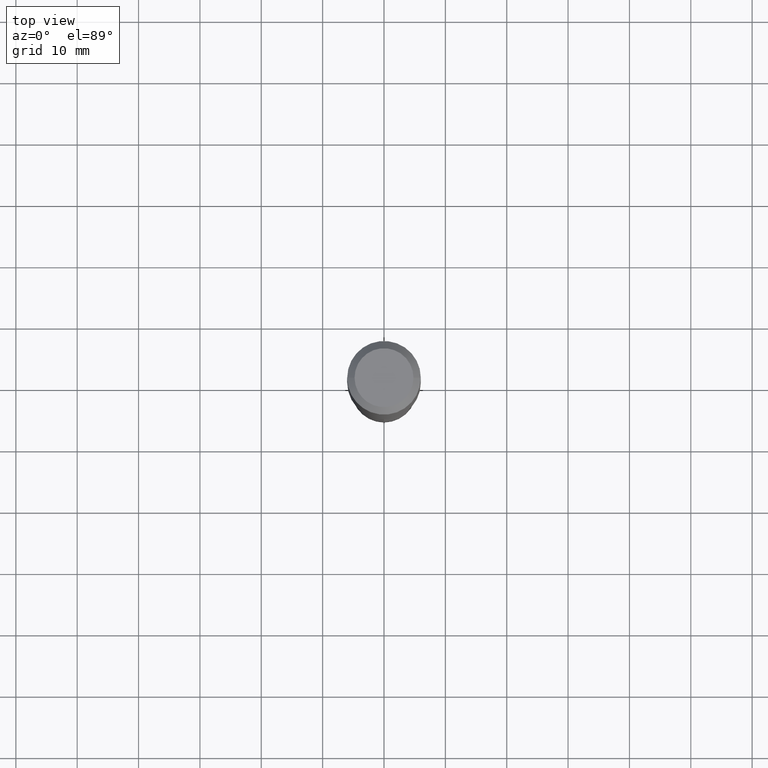
[diagram: clean part render]
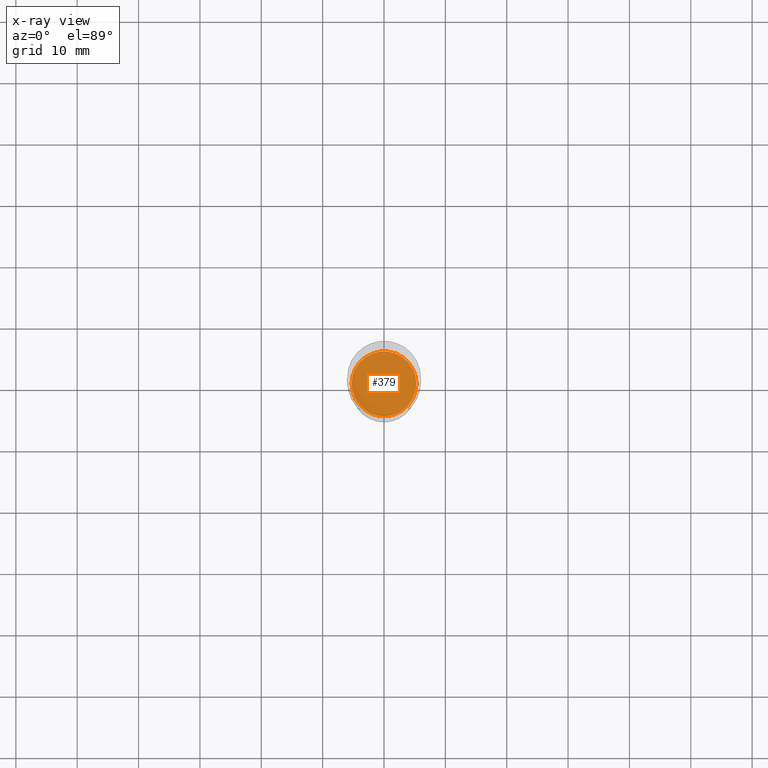
[diagram: x-ray — body ghosted, one internal face saturated and labeled with its STEP entity id]
A machine part, top view, then the same camera in x-ray: the body is ghosted and one INTERNAL B-rep face — a face not visible from any outside direction — is saturated and labeled: STEP entity #379.
In plain terms, the highlighted planar face has unit normal (-0, 0, 1).
Its self-contained STEP definition (entity closure, byte-faithful):
#15 = AXIS2_PLACEMENT_3D ( 'NONE', #451, #76, #109 ) ;
#54 = AXIS2_PLACEMENT_3D ( 'NONE', #332, #400, #473 ) ;
#62 = EDGE_LOOP ( 'NONE', ( #412, #247 ) ) ;
#70 = VERTEX_POINT ( 'NONE', #446 ) ;
#76 = DIRECTION ( 'NONE',  ( -2.445468806185136597E-29, 3.491481338843145583E-15, 1.000000000000000000 ) ) ;
#94 = PLANE ( 'NONE',  #54 ) ;
#108 = CIRCLE ( 'NONE', #15, 0.2081500000000000017 ) ;
#109 = DIRECTION ( 'NONE',  ( 1.000000000000000000, -6.982962677686263555E-15, 0.000000000000000000 ) ) ;
#124 = DIRECTION ( 'NONE',  ( -2.445468806185136597E-29, 3.491481338843145583E-15, 1.000000000000000000 ) ) ;
#142 = CARTESIAN_POINT ( 'NONE',  ( 0.2081500000000000017, -9.371135913454994033E-15, -2.267699999999999605 ) ) ;
#193 = EDGE_CURVE ( 'NONE', #70, #342, #404, .T. ) ;
#247 = ORIENTED_EDGE ( 'NONE', *, *, #193, .F. ) ;
#287 = DIRECTION ( 'NONE',  ( 1.000000000000000000, -6.982962677686263555E-15, 0.000000000000000000 ) ) ;
#326 = CARTESIAN_POINT ( 'NONE',  ( 5.545589611786032874E-29, -7.917632232094598886E-15, -2.267699999999999605 ) ) ;
#332 = CARTESIAN_POINT ( 'NONE',  ( 5.545589611786032874E-29, -7.917632232094598886E-15, -2.267699999999999605 ) ) ;
#342 = VERTEX_POINT ( 'NONE', #142 ) ;
#379 = ADVANCED_FACE ( 'NONE', ( #435 ), #94, .F. ) ;
#400 = DIRECTION ( 'NONE',  ( -2.438088387897960049E-29, 3.491481338843145188E-15, 1.000000000000000000 ) ) ;
#404 = CIRCLE ( 'NONE', #468, 0.2081500000000000017 ) ;
#412 = ORIENTED_EDGE ( 'NONE', *, *, #470, .F. ) ;
#435 = FACE_OUTER_BOUND ( 'NONE', #62, .T. ) ;
#446 = CARTESIAN_POINT ( 'NONE',  ( -0.2081500000000000017, -6.435988300435839530E-15, -2.267699999999999605 ) ) ;
#451 = CARTESIAN_POINT ( 'NONE',  ( 5.545589611786032874E-29, -7.917632232094598886E-15, -2.267699999999999605 ) ) ;
#468 = AXIS2_PLACEMENT_3D ( 'NONE', #326, #124, #287 ) ;
#470 = EDGE_CURVE ( 'NONE', #342, #70, #108, .T. ) ;
#473 = DIRECTION ( 'NONE',  ( 1.000000000000000000, -6.982962677686265922E-15, 4.876176775795935793E-29 ) ) ;